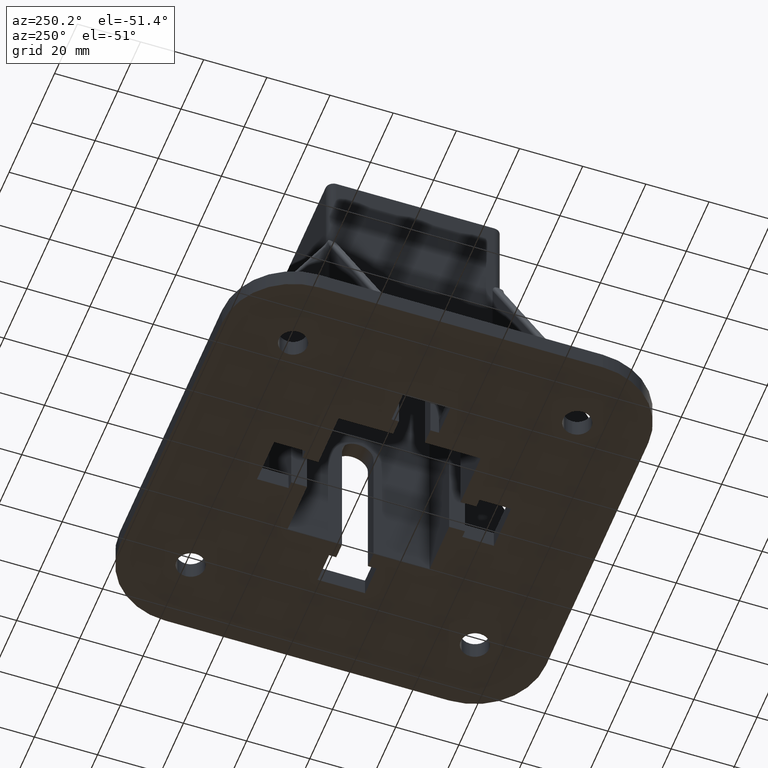
[diagram: clean part render]
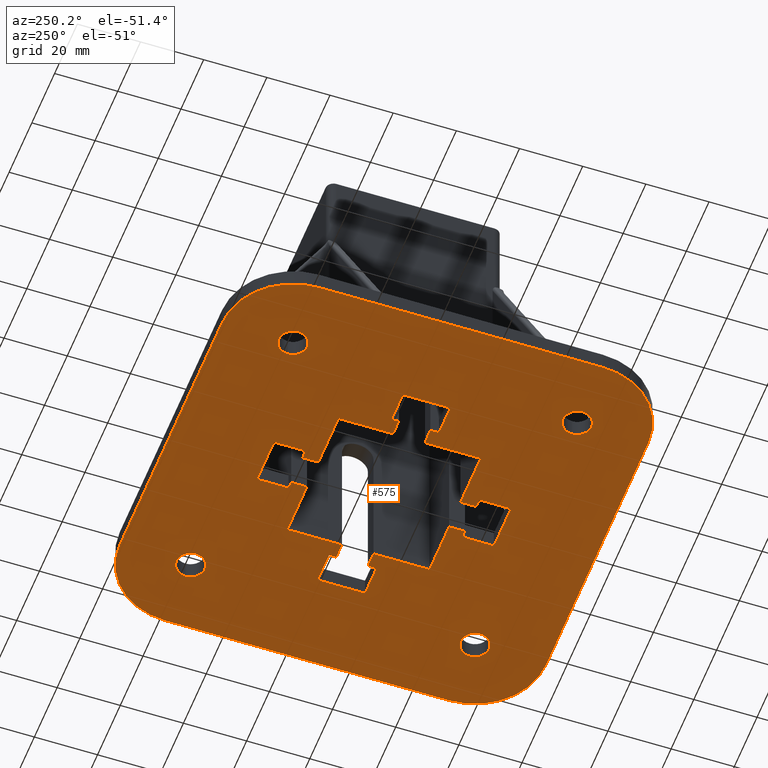
[diagram: same view with one face highlighted and labeled with its STEP entity id]
A machine part, auxiliary view. The second image highlights one B-rep face of the part: STEP entity #575.
In plain terms, the highlighted planar face has unit normal (0, 0, 1).
Its self-contained STEP definition (entity closure, byte-faithful):
#7=CARTESIAN_POINT('',(67.499864999729880,-22.499954999910017,0.0));
#8=VERTEX_POINT('',#7);
#9=CARTESIAN_POINT('',(44.999909999819863,0.0,0.0));
#10=VERTEX_POINT('',#9);
#11=CARTESIAN_POINT('',(44.999909999819863,-22.499954999910017,0.0));
#12=DIRECTION('',(0.0,0.0,1.0));
#13=DIRECTION('',(1.0,0.0,0.0));
#14=AXIS2_PLACEMENT_3D('',#11,#12,#13);
#15=CIRCLE('',#14,22.499954999910017);
#16=EDGE_CURVE('',#8,#10,#15,.T.);
#49=CARTESIAN_POINT('',(-44.999909999819863,0.0,0.0));
#50=VERTEX_POINT('',#49);
#51=CARTESIAN_POINT('',(-67.499864999730050,-22.499954999910187,0.0));
#52=VERTEX_POINT('',#51);
#53=CARTESIAN_POINT('',(-44.999909999819863,-22.499954999910187,0.0));
#54=DIRECTION('',(0.0,0.0,1.0));
#55=DIRECTION('',(0.0,1.0,0.0));
#56=AXIS2_PLACEMENT_3D('',#53,#54,#55);
#57=CIRCLE('',#56,22.499954999910187);
#58=EDGE_CURVE('',#50,#52,#57,.T.);
#91=CARTESIAN_POINT('',(-67.499864999730050,-112.499774999550300,0.0));
#92=VERTEX_POINT('',#91);
#93=CARTESIAN_POINT('',(-44.999909999820147,-134.999729999460210,0.0));
#94=VERTEX_POINT('',#93);
#95=CARTESIAN_POINT('',(-44.999909999820147,-112.499774999550300,0.0));
#96=DIRECTION('',(0.0,0.0,1.0));
#97=DIRECTION('',(-1.0,0.0,0.0));
#98=AXIS2_PLACEMENT_3D('',#95,#96,#97);
#99=CIRCLE('',#98,22.499954999909903);
#100=EDGE_CURVE('',#92,#94,#99,.T.);
#133=CARTESIAN_POINT('',(44.999909999819920,-134.999729999460210,0.0));
#134=VERTEX_POINT('',#133);
#135=CARTESIAN_POINT('',(67.499864999729937,-112.499774999550200,0.0));
#136=VERTEX_POINT('',#135);
#137=CARTESIAN_POINT('',(44.999909999819920,-112.499774999550200,0.0));
#138=DIRECTION('',(0.0,0.0,1.0));
#139=DIRECTION('',(0.0,-1.0,0.0));
#140=AXIS2_PLACEMENT_3D('',#137,#138,#139);
#141=CIRCLE('',#140,22.499954999910003);
#142=EDGE_CURVE('',#134,#136,#141,.T.);
#170=CARTESIAN_POINT('',(-80.999842724625722,-148.499707724580840,0.0));
#171=DIRECTION('',(0.0,0.0,1.0));
#172=DIRECTION('',(1.0,0.0,0.0));
#173=AXIS2_PLACEMENT_3D('',#170,#171,#172);
#174=PLANE('',#173);
#175=CARTESIAN_POINT('',(67.499864999729937,-112.499774999550200,0.0));
#176=DIRECTION('',(0.0,1.0,0.0));
#177=VECTOR('',#176,89.999819999640181);
#178=LINE('',#175,#177);
#179=EDGE_CURVE('',#136,#8,#178,.T.);
#180=ORIENTED_EDGE('',*,*,#179,.F.);
#181=ORIENTED_EDGE('',*,*,#142,.F.);
#182=CARTESIAN_POINT('',(-44.999909999820147,-134.999729999460210,0.0));
#183=DIRECTION('',(1.0,0.0,0.0));
#184=VECTOR('',#183,89.999819999640067);
#185=LINE('',#182,#184);
#186=EDGE_CURVE('',#94,#134,#185,.T.);
#187=ORIENTED_EDGE('',*,*,#186,.F.);
#188=ORIENTED_EDGE('',*,*,#100,.F.);
#189=CARTESIAN_POINT('',(-67.499864999730050,-22.499954999910187,0.0));
#190=DIRECTION('',(0.0,-1.0,0.0));
#191=VECTOR('',#190,89.999819999640110);
#192=LINE('',#189,#191);
#193=EDGE_CURVE('',#52,#92,#192,.T.);
#194=ORIENTED_EDGE('',*,*,#193,.F.);
#195=ORIENTED_EDGE('',*,*,#58,.F.);
#196=CARTESIAN_POINT('',(44.999909999819863,0.0,0.0));
#197=DIRECTION('',(-1.0,0.0,0.0));
#198=VECTOR('',#197,89.999819999639726);
#199=LINE('',#196,#198);
#200=EDGE_CURVE('',#10,#50,#199,.T.);
#201=ORIENTED_EDGE('',*,*,#200,.F.);
#202=ORIENTED_EDGE('',*,*,#16,.F.);
#203=EDGE_LOOP('',(#180,#181,#187,#188,#194,#195,#201,#202));
#204=FACE_OUTER_BOUND('',#203,.T.);
#205=CARTESIAN_POINT('',(5.214749153700325,-89.999819999640295,0.0));
#206=VERTEX_POINT('',#205);
#207=CARTESIAN_POINT('',(22.499954999910017,-89.999819999640295,0.0));
#208=VERTEX_POINT('',#207);
#209=CARTESIAN_POINT('',(5.214749153700325,-89.999819999640295,0.0));
#210=DIRECTION('',(1.0,0.0,0.0));
#211=VECTOR('',#210,17.285205846209692);
#212=LINE('',#209,#211);
#213=EDGE_CURVE('',#206,#208,#212,.T.);
#214=ORIENTED_EDGE('',*,*,#213,.T.);
#215=CARTESIAN_POINT('',(22.499954999910017,-72.285095845989332,0.0));
#216=VERTEX_POINT('',#215);
#217=CARTESIAN_POINT('',(22.499954999910017,-72.285095845989332,0.0));
#218=DIRECTION('',(0.0,-1.0,0.0));
#219=VECTOR('',#218,17.714724153650963);
#220=LINE('',#217,#219);
#221=EDGE_CURVE('',#216,#208,#220,.T.);
#222=ORIENTED_EDGE('',*,*,#221,.F.);
#223=CARTESIAN_POINT('',(27.499944999890033,-72.285095845989332,0.0));
#224=VERTEX_POINT('',#223);
#225=CARTESIAN_POINT('',(27.499944999890033,-72.285095845989332,0.0));
#226=DIRECTION('',(-1.0,0.0,0.0));
#227=VECTOR('',#226,4.999989999980016);
#228=LINE('',#225,#227);
#229=EDGE_CURVE('',#224,#216,#228,.T.);
#230=ORIENTED_EDGE('',*,*,#229,.F.);
#231=CARTESIAN_POINT('',(27.499944999890033,-74.999849999700018,0.0));
#232=VERTEX_POINT('',#231);
#233=CARTESIAN_POINT('',(27.499944999890033,-74.999849999700018,0.0));
#234=DIRECTION('',(0.0,1.0,0.0));
#235=VECTOR('',#234,2.714754153710686);
#236=LINE('',#233,#235);
#237=EDGE_CURVE('',#232,#224,#236,.T.);
#238=ORIENTED_EDGE('',*,*,#237,.F.);
#239=CARTESIAN_POINT('',(37.499924999850066,-74.999849999700018,0.0));
#240=VERTEX_POINT('',#239);
#241=CARTESIAN_POINT('',(37.499924999850066,-74.999849999700018,0.0));
#242=DIRECTION('',(-1.0,0.0,0.0));
#243=VECTOR('',#242,9.999979999960033);
#244=LINE('',#241,#243);
#245=EDGE_CURVE('',#240,#232,#244,.T.);
#246=ORIENTED_EDGE('',*,*,#245,.F.);
#247=CARTESIAN_POINT('',(37.499924999850066,-59.999879999760196,0.0));
#248=VERTEX_POINT('',#247);
#249=CARTESIAN_POINT('',(37.499924999850066,-59.999879999760196,0.0));
#250=DIRECTION('',(0.0,-1.0,0.0));
#251=VECTOR('',#250,14.999969999939822);
#252=LINE('',#249,#251);
#253=EDGE_CURVE('',#248,#240,#252,.T.);
#254=ORIENTED_EDGE('',*,*,#253,.F.);
#255=CARTESIAN_POINT('',(27.499944999890062,-59.999879999760196,0.0));
#256=VERTEX_POINT('',#255);
#257=CARTESIAN_POINT('',(27.499944999890062,-59.999879999760196,0.0));
#258=DIRECTION('',(1.0,0.0,0.0));
#259=VECTOR('',#258,9.999979999960004);
#260=LINE('',#257,#259);
#261=EDGE_CURVE('',#256,#248,#260,.T.);
#262=ORIENTED_EDGE('',*,*,#261,.F.);
#263=CARTESIAN_POINT('',(27.499944999890062,-62.285115846029839,0.0));
#264=VERTEX_POINT('',#263);
#265=CARTESIAN_POINT('',(27.499944999890062,-62.285115846029839,0.0));
#266=DIRECTION('',(0.0,1.0,0.0));
#267=VECTOR('',#266,2.285235846269643);
#268=LINE('',#265,#267);
#269=EDGE_CURVE('',#264,#256,#268,.T.);
#270=ORIENTED_EDGE('',*,*,#269,.F.);
#271=CARTESIAN_POINT('',(22.499954999910017,-62.285115846029839,0.0));
#272=VERTEX_POINT('',#271);
#273=CARTESIAN_POINT('',(22.499954999910017,-62.285115846029839,0.0));
#274=DIRECTION('',(1.0,0.0,0.0));
#275=VECTOR('',#274,4.999989999980045);
#276=LINE('',#273,#275);
#277=EDGE_CURVE('',#272,#264,#276,.T.);
#278=ORIENTED_EDGE('',*,*,#277,.F.);
#279=CARTESIAN_POINT('',(22.499954999910017,-44.999909999819920,0.0));
#280=VERTEX_POINT('',#279);
#281=CARTESIAN_POINT('',(22.499954999910017,-44.999909999819920,0.0));
#282=DIRECTION('',(0.0,-1.0,0.0));
#283=VECTOR('',#282,17.285205846209919);
#284=LINE('',#281,#283);
#285=EDGE_CURVE('',#280,#272,#284,.T.);
#286=ORIENTED_EDGE('',*,*,#285,.F.);
#287=CARTESIAN_POINT('',(5.214749153700154,-44.999909999819920,0.0));
#288=VERTEX_POINT('',#287);
#289=CARTESIAN_POINT('',(22.499954999910017,-44.999909999819920,0.0));
#290=DIRECTION('',(-1.0,0.0,0.0));
#291=VECTOR('',#290,17.285205846209863);
#292=LINE('',#289,#291);
#293=EDGE_CURVE('',#280,#288,#292,.T.);
#294=ORIENTED_EDGE('',*,*,#293,.T.);
#295=CARTESIAN_POINT('',(5.214749153700154,-39.999919999840102,0.0));
#296=VERTEX_POINT('',#295);
#297=CARTESIAN_POINT('',(5.214749153700154,-39.999919999840102,0.0));
#298=DIRECTION('',(0.0,-1.0,0.0));
#299=VECTOR('',#298,4.999989999979817);
#300=LINE('',#297,#299);
#301=EDGE_CURVE('',#296,#288,#300,.T.);
#302=ORIENTED_EDGE('',*,*,#301,.F.);
#303=CARTESIAN_POINT('',(7.499984999970820,-39.999919999840102,0.0));
#304=VERTEX_POINT('',#303);
#305=CARTESIAN_POINT('',(7.499984999970820,-39.999919999840102,0.0));
#306=DIRECTION('',(-1.0,0.0,0.0));
#307=VECTOR('',#306,2.285235846270666);
#308=LINE('',#305,#307);
#309=EDGE_CURVE('',#304,#296,#308,.T.);
#310=ORIENTED_EDGE('',*,*,#309,.F.);
#311=CARTESIAN_POINT('',(7.499984999970820,-29.999939999880098,0.0));
#312=VERTEX_POINT('',#311);
#313=CARTESIAN_POINT('',(7.499984999970820,-29.999939999880098,0.0));
#314=DIRECTION('',(0.0,-1.0,0.0));
#315=VECTOR('',#314,9.999979999960004);
#316=LINE('',#313,#315);
#317=EDGE_CURVE('',#312,#304,#316,.T.);
#318=ORIENTED_EDGE('',*,*,#317,.F.);
#319=CARTESIAN_POINT('',(-7.499984999970081,-29.999939999880098,0.0));
#320=VERTEX_POINT('',#319);
#321=CARTESIAN_POINT('',(-7.499984999970081,-29.999939999880098,0.0));
#322=DIRECTION('',(1.0,0.0,0.0));
#323=VECTOR('',#322,14.999969999940902);
#324=LINE('',#321,#323);
#325=EDGE_CURVE('',#320,#312,#324,.T.);
#326=ORIENTED_EDGE('',*,*,#325,.F.);
#327=CARTESIAN_POINT('',(-7.499984999970081,-39.999919999840131,0.0));
#328=VERTEX_POINT('',#327);
#329=CARTESIAN_POINT('',(-7.499984999970081,-39.999919999840131,0.0));
#330=DIRECTION('',(0.0,1.0,0.0));
#331=VECTOR('',#330,9.999979999960033);
#332=LINE('',#329,#331);
#333=EDGE_CURVE('',#328,#320,#332,.T.);
#334=ORIENTED_EDGE('',*,*,#333,.F.);
#335=CARTESIAN_POINT('',(-4.785230846259253,-39.999919999840131,0.0));
#336=VERTEX_POINT('',#335);
#337=CARTESIAN_POINT('',(-4.785230846259253,-39.999919999840131,0.0));
#338=DIRECTION('',(-1.0,0.0,0.0));
#339=VECTOR('',#338,2.714754153710828);
#340=LINE('',#337,#339);
#341=EDGE_CURVE('',#336,#328,#340,.T.);
#342=ORIENTED_EDGE('',*,*,#341,.F.);
#343=CARTESIAN_POINT('',(-4.785230846259253,-44.999909999819920,0.0));
#344=VERTEX_POINT('',#343);
#345=CARTESIAN_POINT('',(-4.785230846259253,-44.999909999819920,0.0));
#346=DIRECTION('',(0.0,1.0,0.0));
#347=VECTOR('',#346,4.999989999979789);
#348=LINE('',#345,#347);
#349=EDGE_CURVE('',#344,#336,#348,.T.);
#350=ORIENTED_EDGE('',*,*,#349,.F.);
#351=CARTESIAN_POINT('',(-22.499954999909903,-44.999909999819920,0.0));
#352=VERTEX_POINT('',#351);
#353=CARTESIAN_POINT('',(-4.785230846259253,-44.999909999819920,0.0));
#354=DIRECTION('',(-1.0,0.0,0.0));
#355=VECTOR('',#354,17.714724153650650);
#356=LINE('',#353,#355);
#357=EDGE_CURVE('',#344,#352,#356,.T.);
#358=ORIENTED_EDGE('',*,*,#357,.T.);
#359=CARTESIAN_POINT('',(-22.499954999909903,-62.285115846029839,0.0));
#360=VERTEX_POINT('',#359);
#361=CARTESIAN_POINT('',(-22.499954999909903,-44.999909999819920,0.0));
#362=DIRECTION('',(0.0,-1.0,0.0));
#363=VECTOR('',#362,17.285205846209919);
#364=LINE('',#361,#363);
#365=EDGE_CURVE('',#352,#360,#364,.T.);
#366=ORIENTED_EDGE('',*,*,#365,.T.);
#367=CARTESIAN_POINT('',(-27.499944999889919,-62.285115846029839,0.0));
#368=VERTEX_POINT('',#367);
#369=CARTESIAN_POINT('',(-27.499944999889919,-62.285115846029839,0.0));
#370=DIRECTION('',(1.0,0.0,0.0));
#371=VECTOR('',#370,4.999989999980016);
#372=LINE('',#369,#371);
#373=EDGE_CURVE('',#368,#360,#372,.T.);
#374=ORIENTED_EDGE('',*,*,#373,.F.);
#375=CARTESIAN_POINT('',(-27.499944999889948,-59.999879999760196,0.0));
#376=VERTEX_POINT('',#375);
#377=CARTESIAN_POINT('',(-27.499944999889944,-59.999879999760196,0.0));
#378=DIRECTION('',(0.0,-1.0,0.0));
#379=VECTOR('',#378,2.285235846269643);
#380=LINE('',#377,#379);
#381=EDGE_CURVE('',#376,#368,#380,.T.);
#382=ORIENTED_EDGE('',*,*,#381,.F.);
#383=CARTESIAN_POINT('',(-37.499924999849952,-59.999879999760196,0.0));
#384=VERTEX_POINT('',#383);
#385=CARTESIAN_POINT('',(-37.499924999849952,-59.999879999760196,0.0));
#386=DIRECTION('',(1.0,0.0,0.0));
#387=VECTOR('',#386,9.999979999960004);
#388=LINE('',#385,#387);
#389=EDGE_CURVE('',#384,#376,#388,.T.);
#390=ORIENTED_EDGE('',*,*,#389,.F.);
#391=CARTESIAN_POINT('',(-37.499924999849952,-74.999849999700018,0.0));
#392=VERTEX_POINT('',#391);
#393=CARTESIAN_POINT('',(-37.499924999849952,-74.999849999700018,0.0));
#394=DIRECTION('',(0.0,1.0,0.0));
#395=VECTOR('',#394,14.999969999939822);
#396=LINE('',#393,#395);
#397=EDGE_CURVE('',#392,#384,#396,.T.);
#398=ORIENTED_EDGE('',*,*,#397,.F.);
#399=CARTESIAN_POINT('',(-27.499944999889948,-74.999849999700018,0.0));
#400=VERTEX_POINT('',#399);
#401=CARTESIAN_POINT('',(-27.499944999889948,-74.999849999700018,0.0));
#402=DIRECTION('',(-1.0,0.0,0.0));
#403=VECTOR('',#402,9.999979999960004);
#404=LINE('',#401,#403);
#405=EDGE_CURVE('',#400,#392,#404,.T.);
#406=ORIENTED_EDGE('',*,*,#405,.F.);
#407=CARTESIAN_POINT('',(-27.499944999889948,-72.285095845988963,0.0));
#408=VERTEX_POINT('',#407);
#409=CARTESIAN_POINT('',(-27.499944999889948,-72.285095845988963,0.0));
#410=DIRECTION('',(0.0,-1.0,0.0));
#411=VECTOR('',#410,2.714754153711056);
#412=LINE('',#409,#411);
#413=EDGE_CURVE('',#408,#400,#412,.T.);
#414=ORIENTED_EDGE('',*,*,#413,.F.);
#415=CARTESIAN_POINT('',(-22.499954999909903,-72.285095845988963,0.0));
#416=VERTEX_POINT('',#415);
#417=CARTESIAN_POINT('',(-22.499954999909903,-72.285095845988963,0.0));
#418=DIRECTION('',(-1.0,0.0,0.0));
#419=VECTOR('',#418,4.999989999980045);
#420=LINE('',#417,#419);
#421=EDGE_CURVE('',#416,#408,#420,.T.);
#422=ORIENTED_EDGE('',*,*,#421,.F.);
#423=CARTESIAN_POINT('',(-22.499954999909903,-89.999819999640295,0.0));
#424=VERTEX_POINT('',#423);
#425=CARTESIAN_POINT('',(-22.499954999909903,-72.285095845988963,0.0));
#426=DIRECTION('',(0.0,-1.0,0.0));
#427=VECTOR('',#426,17.714724153651332);
#428=LINE('',#425,#427);
#429=EDGE_CURVE('',#416,#424,#428,.T.);
#430=ORIENTED_EDGE('',*,*,#429,.T.);
#431=CARTESIAN_POINT('',(-4.785230846259253,-89.999819999640295,0.0));
#432=VERTEX_POINT('',#431);
#433=CARTESIAN_POINT('',(-22.499954999909903,-89.999819999640295,0.0));
#434=DIRECTION('',(1.0,0.0,0.0));
#435=VECTOR('',#434,17.714724153650650);
#436=LINE('',#433,#435);
#437=EDGE_CURVE('',#424,#432,#436,.T.);
#438=ORIENTED_EDGE('',*,*,#437,.T.);
#439=CARTESIAN_POINT('',(-4.785230846259253,-94.999809999620084,0.0));
#440=VERTEX_POINT('',#439);
#441=CARTESIAN_POINT('',(-4.785230846259253,-94.999809999620084,0.0));
#442=DIRECTION('',(0.0,1.0,0.0));
#443=VECTOR('',#442,4.999989999979789);
#444=LINE('',#441,#443);
#445=EDGE_CURVE('',#440,#432,#444,.T.);
#446=ORIENTED_EDGE('',*,*,#445,.F.);
#447=CARTESIAN_POINT('',(-7.499984999970081,-94.999809999620098,0.0));
#448=VERTEX_POINT('',#447);
#449=CARTESIAN_POINT('',(-7.499984999970081,-94.999809999620098,0.0));
#450=DIRECTION('',(1.0,0.0,0.0));
#451=VECTOR('',#450,2.714754153710828);
#452=LINE('',#449,#451);
#453=EDGE_CURVE('',#448,#440,#452,.T.);
#454=ORIENTED_EDGE('',*,*,#453,.F.);
#455=CARTESIAN_POINT('',(-7.499984999970081,-104.999789999580120,0.0));
#456=VERTEX_POINT('',#455);
#457=CARTESIAN_POINT('',(-7.499984999970081,-104.999789999580120,0.0));
#458=DIRECTION('',(0.0,1.0,0.0));
#459=VECTOR('',#458,9.999979999960019);
#460=LINE('',#457,#459);
#461=EDGE_CURVE('',#456,#448,#460,.T.);
#462=ORIENTED_EDGE('',*,*,#461,.F.);
#463=CARTESIAN_POINT('',(7.499984999970820,-104.999789999580120,0.0));
#464=VERTEX_POINT('',#463);
#465=CARTESIAN_POINT('',(7.499984999970820,-104.999789999580120,0.0));
#466=DIRECTION('',(-1.0,0.0,0.0));
#467=VECTOR('',#466,14.999969999940902);
#468=LINE('',#465,#467);
#469=EDGE_CURVE('',#464,#456,#468,.T.);
#470=ORIENTED_EDGE('',*,*,#469,.F.);
#471=CARTESIAN_POINT('',(7.499984999970820,-94.999809999620112,0.0));
#472=VERTEX_POINT('',#471);
#473=CARTESIAN_POINT('',(7.499984999970822,-94.999809999620112,0.0));
#474=DIRECTION('',(0.0,-1.0,0.0));
#475=VECTOR('',#474,9.999979999960004);
#476=LINE('',#473,#475);
#477=EDGE_CURVE('',#472,#464,#476,.T.);
#478=ORIENTED_EDGE('',*,*,#477,.F.);
#479=CARTESIAN_POINT('',(5.214749153700325,-94.999809999620112,0.0));
#480=VERTEX_POINT('',#479);
#481=CARTESIAN_POINT('',(5.214749153700325,-94.999809999620112,0.0));
#482=DIRECTION('',(1.0,0.0,0.0));
#483=VECTOR('',#482,2.285235846270496);
#484=LINE('',#481,#483);
#485=EDGE_CURVE('',#480,#472,#484,.T.);
#486=ORIENTED_EDGE('',*,*,#485,.F.);
#487=CARTESIAN_POINT('',(5.214749153700325,-89.999819999640295,0.0));
#488=DIRECTION('',(0.0,-1.0,0.0));
#489=VECTOR('',#488,4.999989999979817);
#490=LINE('',#487,#489);
#491=EDGE_CURVE('',#206,#480,#490,.T.);
#492=ORIENTED_EDGE('',*,*,#491,.F.);
#493=EDGE_LOOP('',(#214,#222,#230,#238,#246,#254,#262,#270,#278,#286,#294,#302,#310,#318,#326,#334,#342,#350,#358,#366,#374,#382,#390,#398,#406,#414,#422,#430,#438,#446,#454,#462,#470,#478,#486,#492));
#494=FACE_BOUND('',#493,.T.);
#495=CARTESIAN_POINT('',(-49.499900999802094,-22.499954999910187,0.0));
#496=VERTEX_POINT('',#495);
#497=CARTESIAN_POINT('',(-40.499918999838087,-22.499954999910187,0.0));
#498=VERTEX_POINT('',#497);
#499=CARTESIAN_POINT('',(-44.999909999820090,-22.499954999910187,0.0));
#500=DIRECTION('',(0.0,0.0,-1.0));
#501=DIRECTION('',(1.0,0.0,0.0));
#502=AXIS2_PLACEMENT_3D('',#499,#500,#501);
#503=CIRCLE('',#502,4.499990999982003);
#504=EDGE_CURVE('',#496,#498,#503,.T.);
#505=ORIENTED_EDGE('',*,*,#504,.F.);
#506=CARTESIAN_POINT('',(-44.999909999820090,-22.499954999910187,0.0));
#507=DIRECTION('',(0.0,0.0,-1.0));
#508=DIRECTION('',(1.0,0.0,0.0));
#509=AXIS2_PLACEMENT_3D('',#506,#507,#508);
#510=CIRCLE('',#509,4.499990999982003);
#511=EDGE_CURVE('',#498,#496,#510,.T.);
#512=ORIENTED_EDGE('',*,*,#511,.F.);
#513=EDGE_LOOP('',(#505,#512));
#514=FACE_BOUND('',#513,.T.);
#515=CARTESIAN_POINT('',(-49.499900999802321,-112.499774999550030,0.0));
#516=VERTEX_POINT('',#515);
#517=CARTESIAN_POINT('',(-40.499918999838314,-112.499774999550030,0.0));
#518=VERTEX_POINT('',#517);
#519=CARTESIAN_POINT('',(-44.999909999820318,-112.499774999550030,0.0));
#520=DIRECTION('',(0.0,0.0,-1.0));
#521=DIRECTION('',(1.0,0.0,0.0));
#522=AXIS2_PLACEMENT_3D('',#519,#520,#521);
#523=CIRCLE('',#522,4.499990999982003);
#524=EDGE_CURVE('',#516,#518,#523,.T.);
#525=ORIENTED_EDGE('',*,*,#524,.F.);
#526=CARTESIAN_POINT('',(-44.999909999820318,-112.499774999550030,0.0));
#527=DIRECTION('',(0.0,0.0,-1.0));
#528=DIRECTION('',(1.0,0.0,0.0));
#529=AXIS2_PLACEMENT_3D('',#526,#527,#528);
#530=CIRCLE('',#529,4.499990999982003);
#531=EDGE_CURVE('',#518,#516,#530,.T.);
#532=ORIENTED_EDGE('',*,*,#531,.F.);
#533=EDGE_LOOP('',(#525,#532));
#534=FACE_BOUND('',#533,.T.);
#535=CARTESIAN_POINT('',(40.499918999837973,-112.499774999550030,0.0));
#536=VERTEX_POINT('',#535);
#537=CARTESIAN_POINT('',(49.499900999801980,-112.499774999550030,0.0));
#538=VERTEX_POINT('',#537);
#539=CARTESIAN_POINT('',(44.999909999819977,-112.499774999550030,0.0));
#540=DIRECTION('',(0.0,0.0,-1.0));
#541=DIRECTION('',(1.0,0.0,0.0));
#542=AXIS2_PLACEMENT_3D('',#539,#540,#541);
#543=CIRCLE('',#542,4.499990999982003);
#544=EDGE_CURVE('',#536,#538,#543,.T.);
#545=ORIENTED_EDGE('',*,*,#544,.F.);
#546=CARTESIAN_POINT('',(44.999909999819977,-112.499774999550030,0.0));
#547=DIRECTION('',(0.0,0.0,-1.0));
#548=DIRECTION('',(1.0,0.0,0.0));
#549=AXIS2_PLACEMENT_3D('',#546,#547,#548);
#550=CIRCLE('',#549,4.499990999982003);
#551=EDGE_CURVE('',#538,#536,#550,.T.);
#552=ORIENTED_EDGE('',*,*,#551,.F.);
#553=EDGE_LOOP('',(#545,#552));
#554=FACE_BOUND('',#553,.T.);
#555=CARTESIAN_POINT('',(40.499918999837973,-22.499954999910187,0.0));
#556=VERTEX_POINT('',#555);
#557=CARTESIAN_POINT('',(49.499900999801980,-22.499954999910187,0.0));
#558=VERTEX_POINT('',#557);
#559=CARTESIAN_POINT('',(44.999909999819977,-22.499954999910187,0.0));
#560=DIRECTION('',(0.0,0.0,-1.0));
#561=DIRECTION('',(1.0,0.0,0.0));
#562=AXIS2_PLACEMENT_3D('',#559,#560,#561);
#563=CIRCLE('',#562,4.499990999982003);
#564=EDGE_CURVE('',#556,#558,#563,.T.);
#565=ORIENTED_EDGE('',*,*,#564,.F.);
#566=CARTESIAN_POINT('',(44.999909999819977,-22.499954999910187,0.0));
#567=DIRECTION('',(0.0,0.0,-1.0));
#568=DIRECTION('',(1.0,0.0,0.0));
#569=AXIS2_PLACEMENT_3D('',#566,#567,#568);
#570=CIRCLE('',#569,4.499990999982003);
#571=EDGE_CURVE('',#558,#556,#570,.T.);
#572=ORIENTED_EDGE('',*,*,#571,.F.);
#573=EDGE_LOOP('',(#565,#572));
#574=FACE_BOUND('',#573,.T.);
#575=ADVANCED_FACE('',(#204,#494,#514,#534,#554,#574),#174,.F.);